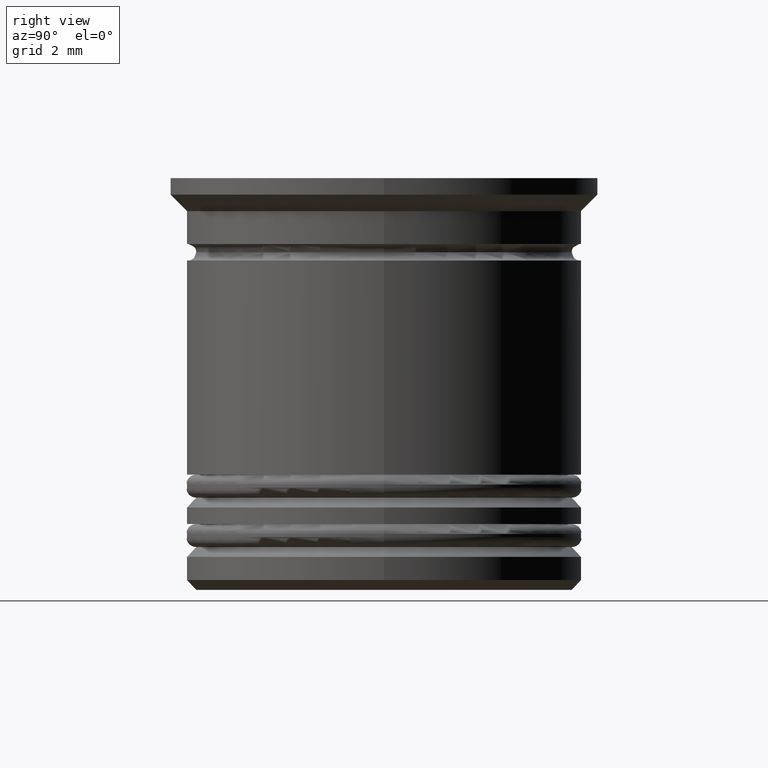
[diagram: clean part render]
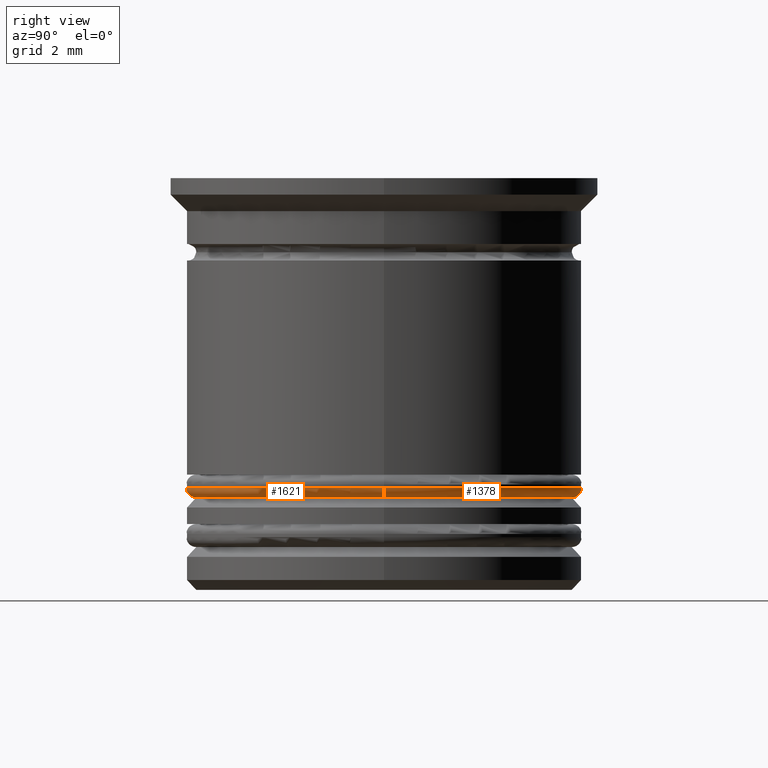
[diagram: same view with one multi-face feature highlighted, each face labeled with its STEP entity id]
A machine part, right view. The highlighted faces form ONE feature: a constant-radius fillet chain: 2 tangent blend faces with common blend radius 0.3 mm. The faces share edges in the B-rep.
Their STEP definitions:
[1] entity #1378 (Torus):
#9 = AXIS2_PLACEMENT_3D ( 'NONE', #1733, #320, #822 ) ;
#23 = ORIENTED_EDGE ( 'NONE', *, *, #28, .F. ) ;
#28 = EDGE_CURVE ( 'NONE', #1441, #1292, #490, .T. ) ;
#29 = DIRECTION ( 'NONE',  ( 0.000000000000000000, 0.000000000000000000, 1.000000000000000000 ) ) ;
#68 = VERTEX_POINT ( 'NONE', #1355 ) ;
#91 = CARTESIAN_POINT ( 'NONE',  ( 5.700000000000002842, 0.000000000000000000, -9.400000000000005684 ) ) ;
#168 = FACE_OUTER_BOUND ( 'NONE', #1277, .T. ) ;
#192 = ORIENTED_EDGE ( 'NONE', *, *, #257, .F. ) ;
#257 = EDGE_CURVE ( 'NONE', #68, #1085, #305, .T. ) ;
#264 = CARTESIAN_POINT ( 'NONE',  ( 0.000000000000000000, 0.000000000000000000, -9.400000000000005684 ) ) ;
#305 = CIRCLE ( 'NONE', #9, 5.700000000000002842 ) ;
#311 = CIRCLE ( 'NONE', #1726, 0.2999999999999999334 ) ;
#320 = DIRECTION ( 'NONE',  ( -0.000000000000000000, -0.000000000000000000, -1.000000000000000000 ) ) ;
#330 = CIRCLE ( 'NONE', #526, 0.2999999999999999334 ) ;
#340 = DIRECTION ( 'NONE',  ( 1.000000000000000000, 0.000000000000000000, 0.000000000000000000 ) ) ;
#436 = EDGE_CURVE ( 'NONE', #1085, #1441, #330, .T. ) ;
#490 = CIRCLE ( 'NONE', #948, 6.000000000000002665 ) ;
#498 = TOROIDAL_SURFACE ( 'NONE', #1055, 5.700000000000002842, 0.2999999999999999889 ) ;
#526 = AXIS2_PLACEMENT_3D ( 'NONE', #91, #533, #1932 ) ;
#533 = DIRECTION ( 'NONE',  ( 0.000000000000000000, -1.000000000000000000, 0.000000000000000000 ) ) ;
#539 = CARTESIAN_POINT ( 'NONE',  ( 5.700000000000002842, 0.000000000000000000, -9.700000000000006395 ) ) ;
#546 = CARTESIAN_POINT ( 'NONE',  ( -5.700000000000002842, 6.980486755139916067E-16, -9.400000000000005684 ) ) ;
#653 = CARTESIAN_POINT ( 'NONE',  ( 0.000000000000000000, 0.000000000000000000, -9.400000000000005684 ) ) ;
#737 = DIRECTION ( 'NONE',  ( 1.000000000000000000, 0.000000000000000000, 0.000000000000000000 ) ) ;
#786 = CARTESIAN_POINT ( 'NONE',  ( -6.000000000000002665, 7.347880794884122694E-16, -9.400000000000005684 ) ) ;
#822 = DIRECTION ( 'NONE',  ( 1.000000000000000000, 0.000000000000000000, 0.000000000000000000 ) ) ;
#907 = DIRECTION ( 'NONE',  ( -1.000000000000000000, 1.224646799147353207E-16, 0.000000000000000000 ) ) ;
#948 = AXIS2_PLACEMENT_3D ( 'NONE', #264, #1316, #737 ) ;
#1055 = AXIS2_PLACEMENT_3D ( 'NONE', #653, #29, #340 ) ;
#1085 = VERTEX_POINT ( 'NONE', #539 ) ;
#1277 = EDGE_LOOP ( 'NONE', ( #192, #1884, #23, #1643 ) ) ;
#1292 = VERTEX_POINT ( 'NONE', #786 ) ;
#1316 = DIRECTION ( 'NONE',  ( 0.000000000000000000, 0.000000000000000000, 1.000000000000000000 ) ) ;
#1355 = CARTESIAN_POINT ( 'NONE',  ( -5.700000000000002842, 7.164183775012019380E-16, -9.700000000000006395 ) ) ;
#1378 = ADVANCED_FACE ( 'NONE', ( #168 ), #498, .T. ) ;
#1441 = VERTEX_POINT ( 'NONE', #1622 ) ;
#1622 = CARTESIAN_POINT ( 'NONE',  ( 6.000000000000002665, 0.000000000000000000, -9.400000000000005684 ) ) ;
#1643 = ORIENTED_EDGE ( 'NONE', *, *, #436, .F. ) ;
#1726 = AXIS2_PLACEMENT_3D ( 'NONE', #546, #1776, #907 ) ;
#1733 = CARTESIAN_POINT ( 'NONE',  ( 0.000000000000000000, 0.000000000000000000, -9.700000000000006395 ) ) ;
#1776 = DIRECTION ( 'NONE',  ( 1.224646799147353207E-16, 1.000000000000000000, -0.000000000000000000 ) ) ;
#1884 = ORIENTED_EDGE ( 'NONE', *, *, #1911, .T. ) ;
#1911 = EDGE_CURVE ( 'NONE', #68, #1292, #311, .T. ) ;
#1932 = DIRECTION ( 'NONE',  ( 0.000000000000000000, 0.000000000000000000, -1.000000000000000000 ) ) ;
[2] entity #1621 (Torus):
#68 = VERTEX_POINT ( 'NONE', #1355 ) ;
#91 = CARTESIAN_POINT ( 'NONE',  ( 5.700000000000002842, 0.000000000000000000, -9.400000000000005684 ) ) ;
#147 = ORIENTED_EDGE ( 'NONE', *, *, #1202, .F. ) ;
#222 = DIRECTION ( 'NONE',  ( 1.000000000000000000, 0.000000000000000000, 0.000000000000000000 ) ) ;
#311 = CIRCLE ( 'NONE', #1726, 0.2999999999999999334 ) ;
#330 = CIRCLE ( 'NONE', #526, 0.2999999999999999334 ) ;
#351 = DIRECTION ( 'NONE',  ( 0.000000000000000000, 0.000000000000000000, 1.000000000000000000 ) ) ;
#382 = CARTESIAN_POINT ( 'NONE',  ( 0.000000000000000000, 0.000000000000000000, -9.400000000000005684 ) ) ;
#385 = ORIENTED_EDGE ( 'NONE', *, *, #1911, .F. ) ;
#436 = EDGE_CURVE ( 'NONE', #1085, #1441, #330, .T. ) ;
#476 = ORIENTED_EDGE ( 'NONE', *, *, #1694, .F. ) ;
#526 = AXIS2_PLACEMENT_3D ( 'NONE', #91, #533, #1932 ) ;
#533 = DIRECTION ( 'NONE',  ( 0.000000000000000000, -1.000000000000000000, 0.000000000000000000 ) ) ;
#539 = CARTESIAN_POINT ( 'NONE',  ( 5.700000000000002842, 0.000000000000000000, -9.700000000000006395 ) ) ;
#546 = CARTESIAN_POINT ( 'NONE',  ( -5.700000000000002842, 6.980486755139916067E-16, -9.400000000000005684 ) ) ;
#626 = ORIENTED_EDGE ( 'NONE', *, *, #436, .T. ) ;
#710 = FACE_OUTER_BOUND ( 'NONE', #1927, .T. ) ;
#741 = TOROIDAL_SURFACE ( 'NONE', #993, 5.700000000000002842, 0.2999999999999999889 ) ;
#758 = DIRECTION ( 'NONE',  ( 1.000000000000000000, 0.000000000000000000, 0.000000000000000000 ) ) ;
#773 = CIRCLE ( 'NONE', #1117, 6.000000000000002665 ) ;
#786 = CARTESIAN_POINT ( 'NONE',  ( -6.000000000000002665, 7.347880794884122694E-16, -9.400000000000005684 ) ) ;
#818 = DIRECTION ( 'NONE',  ( 0.000000000000000000, 0.000000000000000000, 1.000000000000000000 ) ) ;
#907 = DIRECTION ( 'NONE',  ( -1.000000000000000000, 1.224646799147353207E-16, 0.000000000000000000 ) ) ;
#974 = DIRECTION ( 'NONE',  ( 1.000000000000000000, 0.000000000000000000, 0.000000000000000000 ) ) ;
#993 = AXIS2_PLACEMENT_3D ( 'NONE', #382, #818, #222 ) ;
#1085 = VERTEX_POINT ( 'NONE', #539 ) ;
#1117 = AXIS2_PLACEMENT_3D ( 'NONE', #1124, #351, #974 ) ;
#1124 = CARTESIAN_POINT ( 'NONE',  ( 0.000000000000000000, 0.000000000000000000, -9.400000000000005684 ) ) ;
#1202 = EDGE_CURVE ( 'NONE', #1085, #68, #1207, .T. ) ;
#1207 = CIRCLE ( 'NONE', #1346, 5.700000000000002842 ) ;
#1292 = VERTEX_POINT ( 'NONE', #786 ) ;
#1346 = AXIS2_PLACEMENT_3D ( 'NONE', #1823, #1538, #758 ) ;
#1355 = CARTESIAN_POINT ( 'NONE',  ( -5.700000000000002842, 7.164183775012019380E-16, -9.700000000000006395 ) ) ;
#1441 = VERTEX_POINT ( 'NONE', #1622 ) ;
#1538 = DIRECTION ( 'NONE',  ( -0.000000000000000000, -0.000000000000000000, -1.000000000000000000 ) ) ;
#1621 = ADVANCED_FACE ( 'NONE', ( #710 ), #741, .T. ) ;
#1622 = CARTESIAN_POINT ( 'NONE',  ( 6.000000000000002665, 0.000000000000000000, -9.400000000000005684 ) ) ;
#1694 = EDGE_CURVE ( 'NONE', #1292, #1441, #773, .T. ) ;
#1726 = AXIS2_PLACEMENT_3D ( 'NONE', #546, #1776, #907 ) ;
#1776 = DIRECTION ( 'NONE',  ( 1.224646799147353207E-16, 1.000000000000000000, -0.000000000000000000 ) ) ;
#1823 = CARTESIAN_POINT ( 'NONE',  ( 0.000000000000000000, 0.000000000000000000, -9.700000000000006395 ) ) ;
#1911 = EDGE_CURVE ( 'NONE', #68, #1292, #311, .T. ) ;
#1927 = EDGE_LOOP ( 'NONE', ( #385, #147, #626, #476 ) ) ;
#1932 = DIRECTION ( 'NONE',  ( 0.000000000000000000, 0.000000000000000000, -1.000000000000000000 ) ) ;